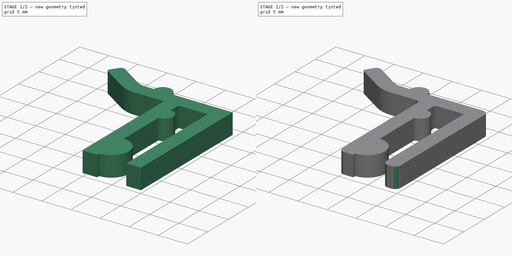
[diagram: build sequence overview — one tinted view per stage of 2, left to right]
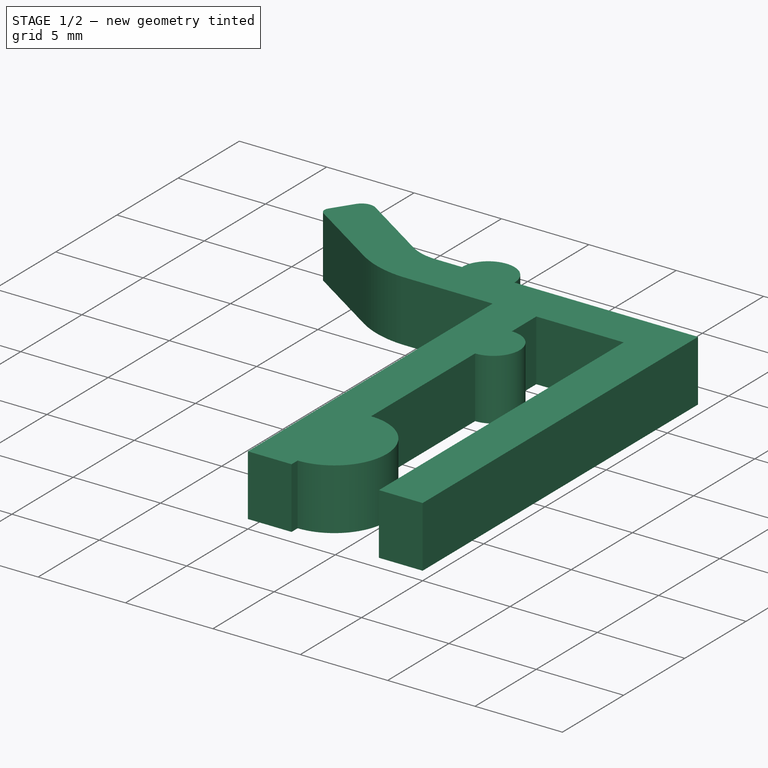
[diagram: stage 1 of 2 — iso view after this stage's code; geometry added in this stage tinted green]
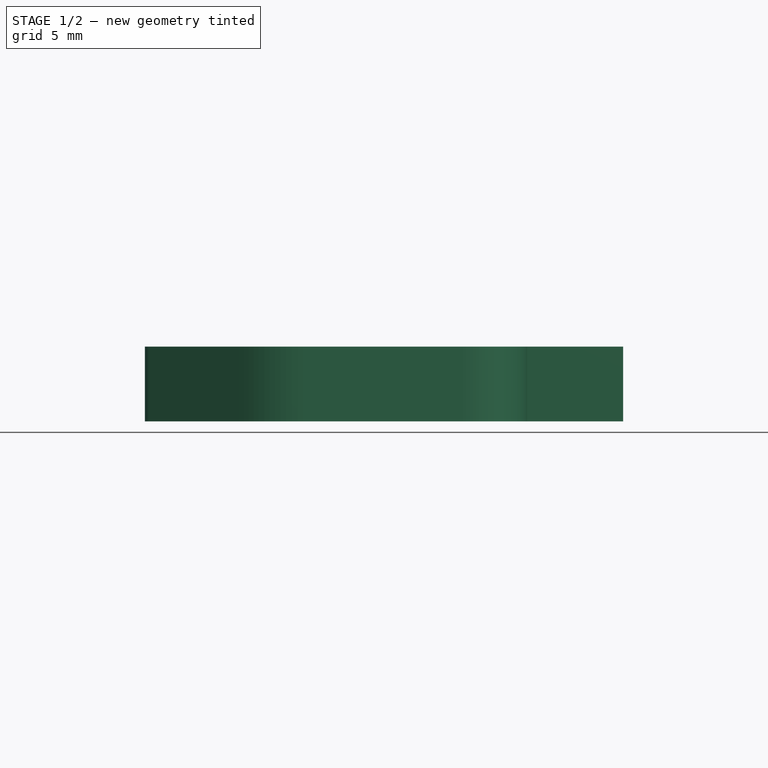
[diagram: stage 1 of 2 — front view after this stage's code; geometry added in this stage tinted green]
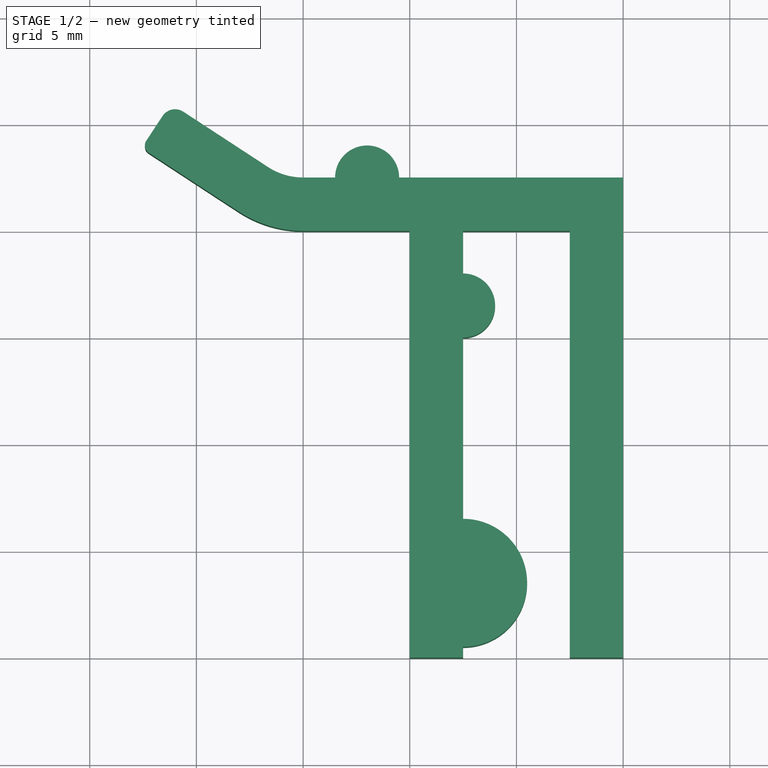
[diagram: stage 1 of 2 — top view after this stage's code; geometry added in this stage tinted green]
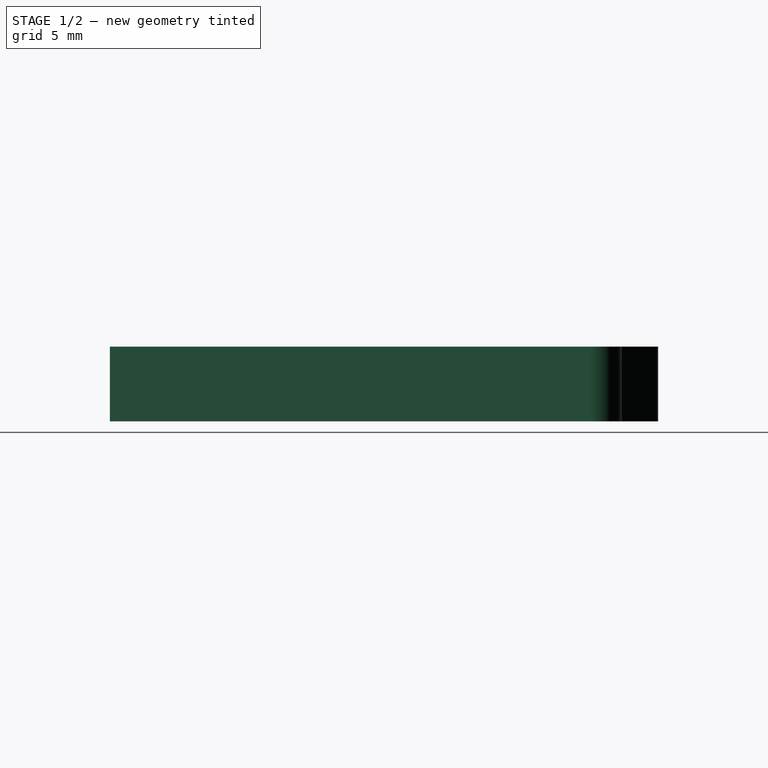
[diagram: stage 1 of 2 — right view after this stage's code; geometry added in this stage tinted green]
FCSTD DOCUMENT  (FreeCAD 0.20R29177 +426 (Git))
Label: dboxGlassOutHanger
License: All rights reserved
LicenseURL: http://en.wikipedia.org/wiki/All_rights_reserved
objects: Sketcher::SketchObject×2, PartDesign::Pad×2, PartDesign::Fillet×2, Spreadsheet::Sheet×1, PartDesign::Body×1
note: 11 computed .brp shape members not serialized (recipe doc carries the construction recipe); baked Part::Feature solids carry a one-line shape summary decoded from their .brp

FEATURE [Sketcher::SketchObject] Sketch
  FullyConstrained = true
  MapMode = 5
  Support = -> [XY_Plane]
  expr: Constraints[17] = Spreadsheet.mesTopInner
  expr: Constraints[18] = Spreadsheet.mesTopOuter
  expr: Constraints[19] = Spreadsheet.mesTotalHeight
  expr: Constraints[24] = Spreadsheet.thickness
  expr: Constraints[26] = Spreadsheet.lidToInner
  expr: Constraints[27] = Spreadsheet.mesToBump
  expr: Constraints[31] = Spreadsheet.mesToBump
  expr: Constraints[32] = Spreadsheet.secondInnerSupportR
  expr: Constraints[34] = Spreadsheet.thickness
  sketch-geometry (12):
    g0: LineSegment StartX=-2.5 StartY=0 StartZ=0 EndX=2.5 EndY=0 EndZ=0
    g1: LineSegment StartX=2.5 StartY=0 StartZ=0 EndX=2.5 EndY=-20 EndZ=0
    g2: LineSegment StartX=-2.5 StartY=-20 StartZ=0 EndX=-2.5 EndY=-19.5 EndZ=0
    g3: LineSegment StartX=-5 StartY=2.5 StartZ=0 EndX=5 EndY=2.5 EndZ=0
    g4: LineSegment StartX=5 StartY=2.5 StartZ=0 EndX=5 EndY=-20 EndZ=0
    g5: LineSegment StartX=-5 StartY=-20 StartZ=0 EndX=-5 EndY=2.5 EndZ=0
    g6: LineSegment StartX=-5 StartY=-20 StartZ=0 EndX=-2.5 EndY=-20 EndZ=0
    g7: LineSegment StartX=2.5 StartY=-20 StartZ=0 EndX=5 EndY=-20 EndZ=0
    g8: ArcOfCircle CenterX=-2.5 CenterY=-3.5 CenterZ=0 NormalX=0 NormalY=0 NormalZ=1 AngleXU=0 Radius=1.5 StartAngle=4.71239 EndAngle=7.85398
    g9: LineSegment StartX=-2.5 StartY=-2 StartZ=0 EndX=-2.5 EndY=0 EndZ=0
    g10: ArcOfCircle CenterX=-2.5 CenterY=-16.5 CenterZ=0 NormalX=0 NormalY=0 NormalZ=1 AngleXU=0 Radius=3 StartAngle=4.71239 EndAngle=7.85398
    g11: LineSegment StartX=-2.5 StartY=-13.5 StartZ=0 EndX=-2.5 EndY=-5 EndZ=0
  constraints (35):
    c: Coincident(g0,g1)
    c: Coincident(g9,g0)
    c: Vertical(g1)
    c: Vertical(g2)
    c: PointOnObject(g0,g-1)
    c: Coincident(g3,g4)
    c: Coincident(g5,g3)
    c: Vertical(g4)
    c: Vertical(g5)
    c: Coincident(g6,g5)
    c: Coincident(g6,g2)
    c: Coincident(g7,g1)
    c: Coincident(g7,g4)
    c: Horizontal(g6)
    c: Horizontal(g7)
    c: Symmetric(g3,g3,g-2)
    c: Symmetric(g0,g0,g-2)
    c: DistanceX(g0,g0) = 5
    c: DistanceX(g3,g3) = 10
    c: DistanceY(g1,g1) = 20
    c: PointOnObject(g8,g2)
    c: Coincident(g11,g8)
    c: Coincident(g9,g8)
    c: Symmetric(g2,g1,g-2)
    c: DistanceY(g-1,g3) = 2.5
    c: Vertical(g9)
    c: Radius(g8) = 1.5
    c: DistanceY(g8,g0) = 3.5
    c: PointOnObject(g10,g2)
    c: Coincident(g2,g10)
    c: Coincident(g11,g10)
    c: DistanceY(g2,g10) = 3.5
    c: Radius(g10) = 3
    c: Vertical(g11)
    c: DistanceX(g3,g8) = 2.5
FEATURE [Spreadsheet::Sheet] Spreadsheet
  cells = A2=mesTopOuter; B2(mesTopOuter)=10; A3=mesTopInner; B3(mesTopInner)=5; A4=mesTotalHeight; B4(mesTotalHeight)=20; A6=thickness; B6(thickness)==(mesTopOuter - mesTopInner) / 2; A7=lidToInner; B7(lidToInner)=1.5; A8=mesToBump; B8(mesToBump)==lidToInner + 2; A9=hinnerLen; B9(hinnerLen)=10; A11=pad; B11(pad)=3.5; A13=secondInnerSupportR; B13(secondInnerSupportR)=3; C13=upper+lower
FEATURE [PartDesign::Pad] Pad
  Direction = (0,0,1)
  Length = 3.5
  Length2 = 10
  Profile = -> Sketch
  ReferenceAxis = -> Sketch [N_Axis]
  Type = 0
  expr: Length = Spreadsheet.pad
FEATURE [Sketcher::SketchObject] Sketch001
  FullyConstrained = true
  MapMode = 5
  Support = -> [XY_Plane]
  expr: Constraints[12] = Spreadsheet.hinnerLen
  expr: Constraints[25] = Spreadsheet.lidToInner
  expr: Constraints[28] = Spreadsheet.thickness
  expr: Constraints[4] = Spreadsheet.thickness
  sketch-geometry (12):
    g0: LineSegment StartX=-10 StartY=0 StartZ=0 EndX=0 EndY=0 EndZ=0
    g1: LineSegment StartX=0 StartY=0 StartZ=0 EndX=0 EndY=2.5 EndZ=0
    g2: LineSegment StartX=0 StartY=2.5 StartZ=0 EndX=-5.5 EndY=2.5 EndZ=0
    g3: LineSegment StartX=-11.6407 StartY=2.98841 StartZ=0 EndX=-15.6172 EndY=5.58604 EndZ=0
    g4: LineSegment StartX=-13.008 StartY=0.895412 StartZ=0 EndX=-17.2275 EndY=3.65181 EndZ=0
    g5: LineSegment StartX=-17.3472 StartY=4.22901 StartZ=0 EndX=-16.5843 EndY=5.38545 EndZ=0
    g6: ArcOfCircle CenterX=-10 CenterY=5.5 CenterZ=0 NormalX=0 NormalY=0 NormalZ=1 AngleXU=0 Radius=5.5 StartAngle=4.13373 EndAngle=4.71239
    g7: ArcOfCircle CenterX=-10 CenterY=5.5 CenterZ=0 NormalX=0 NormalY=0 NormalZ=1 AngleXU=0 Radius=3 StartAngle=4.13373 EndAngle=4.7124
    g8: ArcOfCircle CenterX=-16 CenterY=5 CenterZ=0 NormalX=0 NormalY=0 NormalZ=1 AngleXU=0 Radius=0.7 StartAngle=0.992139 EndAngle=2.55846
    g9: ArcOfCircle CenterX=-17 CenterY=4 CenterZ=0 NormalX=0 NormalY=0 NormalZ=1 AngleXU=0 Radius=0.415902 StartAngle=2.55846 EndAngle=4.13373
    g10: ArcOfCircle CenterX=-7 CenterY=2.5 CenterZ=0 NormalX=0 NormalY=0 NormalZ=1 AngleXU=0 Radius=1.5 StartAngle=1e-16 EndAngle=3.14159
    g11: LineSegment StartX=-8.5 StartY=2.5 StartZ=0 EndX=-9.99998 EndY=2.5 EndZ=0
  constraints (32):
    c: Coincident(g0,g1)
    c: Coincident(g1,g2)
    c: Horizontal(g2)
    c: Vertical(g1)
    c: DistanceY(g1,g1) = 2.5
    c: Coincident(g0,g-1)
    c: Parallel(g4,g3)
    c: Tangent(g4,g6) = 1.5708
    c: Tangent(g0,g6) = -1.5708
    c: Coincident(g11,g7) = 1.5708
    c: Tangent(g3,g7) = 1.5708
    c: Horizontal(g0)
    c: DistanceX(g0,g0) = 10
    c: Tangent(g3,g8) = -1.5708
    c: Tangent(g5,g8) = 1.5708
    c: Tangent(g4,g9) = 1.5708
    c: Tangent(g5,g9) = 1.5708
    c: DistanceX(g8,g0) = 16
    c: DistanceX(g9,g0) = 17
    c: DistanceY(g0,g8) = 5
    c: DistanceY(g0,g9) = 4
    c: Radius(g8) = 0.7
    c: PointOnObject(g10,g2)
    c: Coincident(g2,g10)
    c: Coincident(g11,g10)
    c: Radius(g10) = 1.5
    c: DistanceX(g10,g1) = 7
    c: Horizontal(g11)
    c: DistanceY(g0,g10) = 2.5
    c: Coincident(g7,g6)
    c: Radius(g6) = 5.5
    c: Radius(g7) = 3
FEATURE [PartDesign::Pad] Pad001
  BaseFeature = -> Pad
  Direction = (0,0,1)
  Length = 3.5
  Length2 = 10
  Profile = -> Sketch001
  ReferenceAxis = -> Sketch001 [N_Axis]
  Type = 0
  expr: Length = Spreadsheet.pad
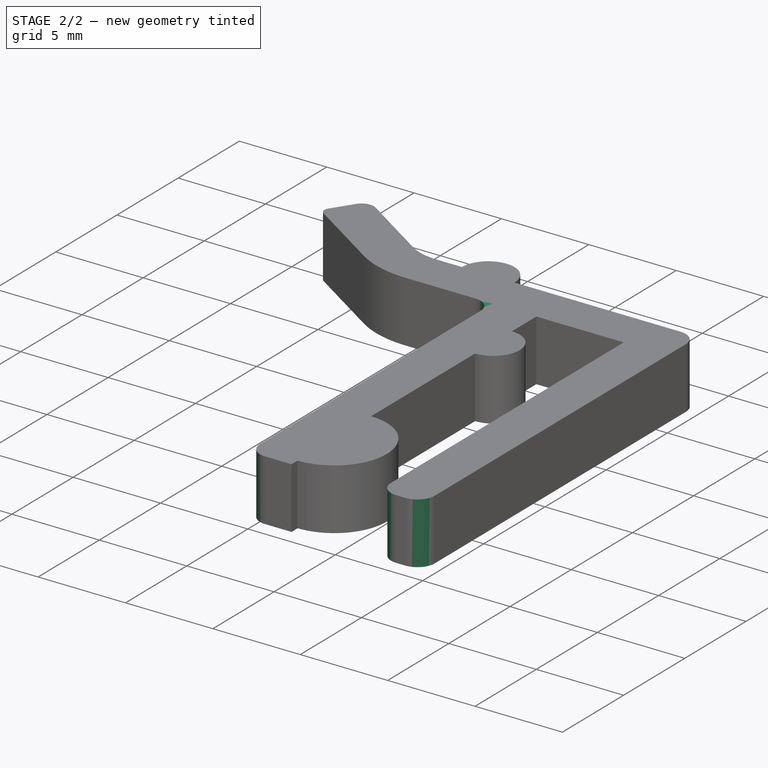
[diagram: stage 2 of 2 — iso view after this stage's code; geometry added in this stage tinted green]
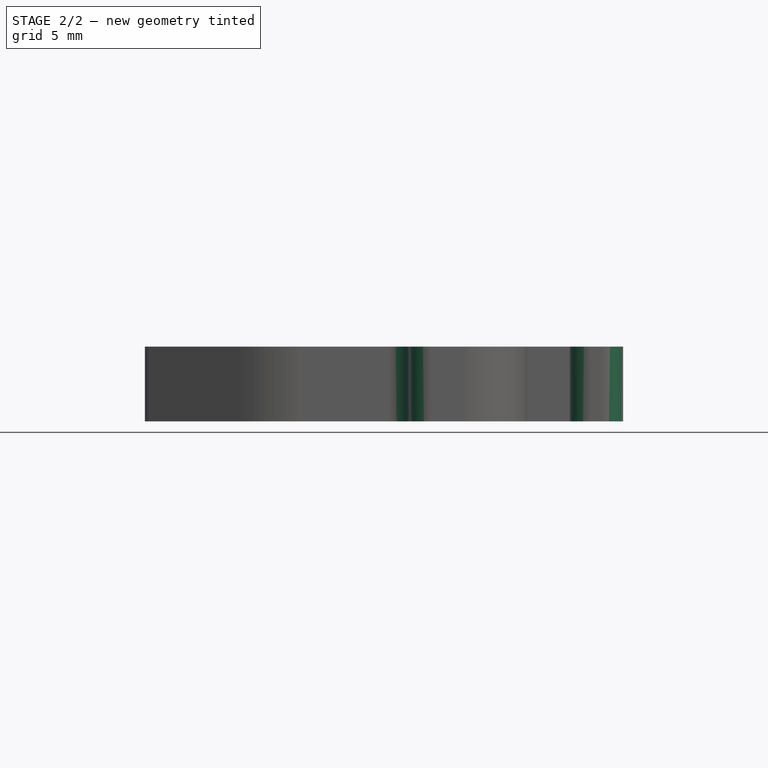
[diagram: stage 2 of 2 — front view after this stage's code; geometry added in this stage tinted green]
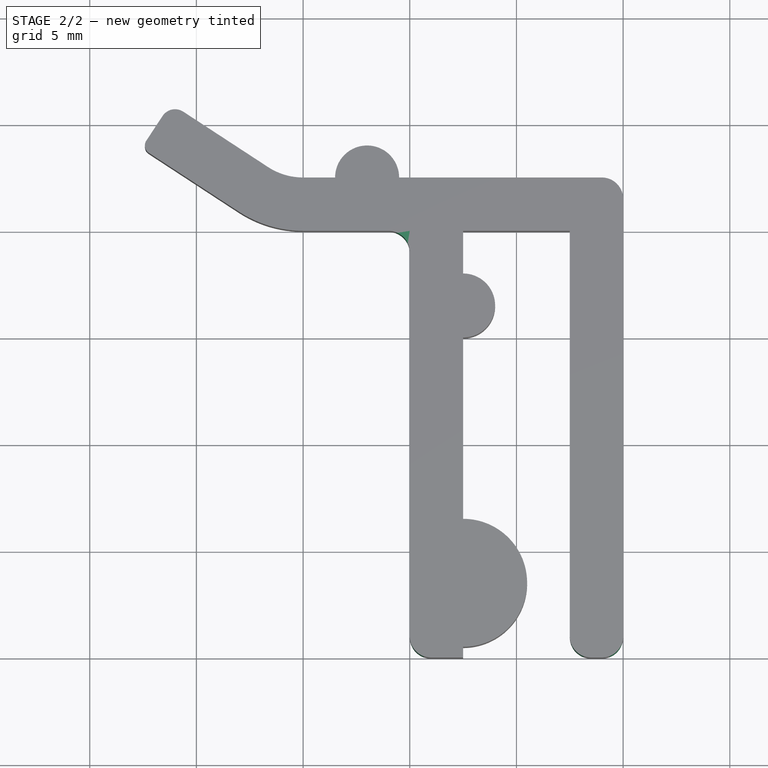
[diagram: stage 2 of 2 — top view after this stage's code; geometry added in this stage tinted green]
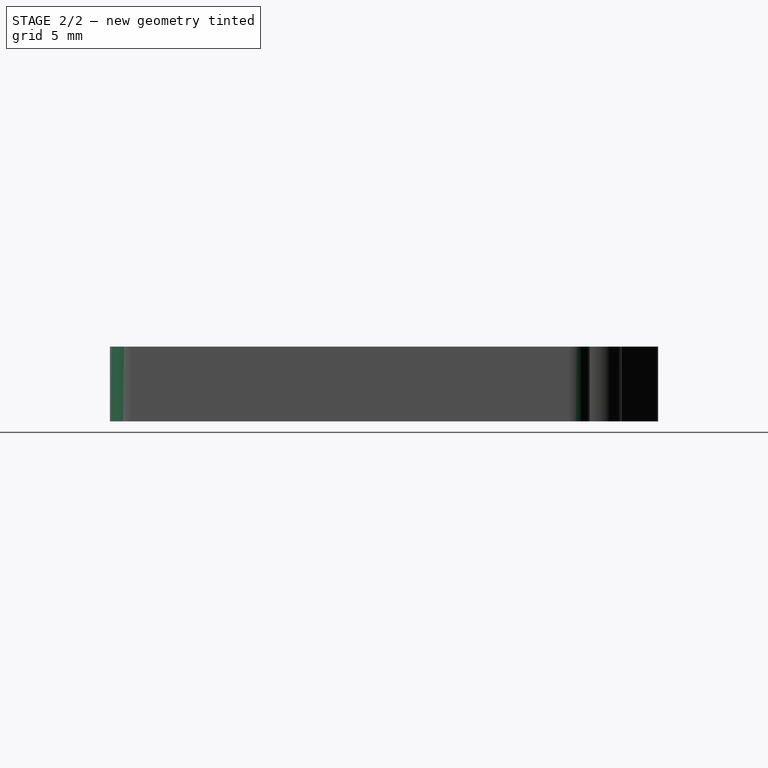
[diagram: stage 2 of 2 — right view after this stage's code; geometry added in this stage tinted green]
FEATURE [PartDesign::Fillet] Fillet
  Base = -> Pad001 [Edge6]
  BaseFeature = -> Pad001
  Radius = 1
  SupportTransform = false
  UseAllEdges = false
FEATURE [PartDesign::Fillet] Fillet001
  Base = -> Fillet [Edge83,Edge84,Edge85,Edge3]
  BaseFeature = -> Fillet
  Radius = 1
  SupportTransform = false
  UseAllEdges = false
FEATURE [PartDesign::Body] Body
  Group = -> [Sketch,Pad,Sketch001,Pad001,Fillet,Fillet001]
  Origin = -> Origin
  Tip = -> Fillet001
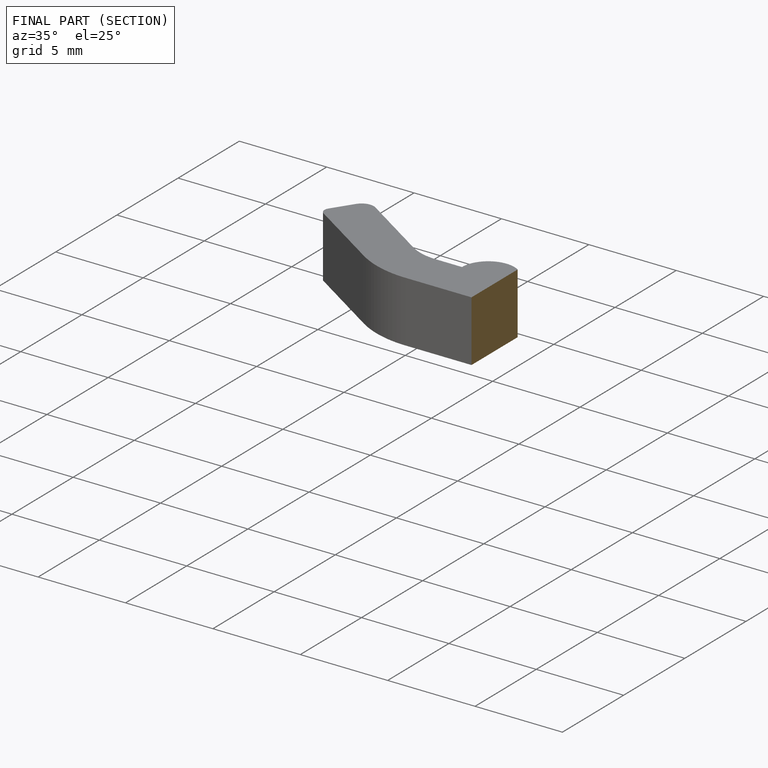
[diagram: finished part — half-section view (interior)]
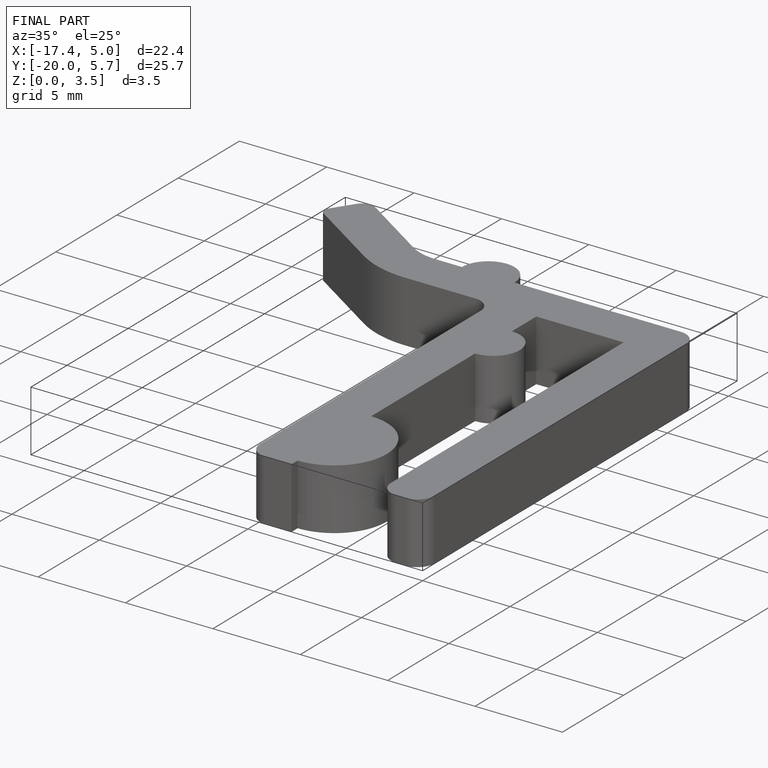
[diagram: finished part — iso view with bounding-box wireframe]
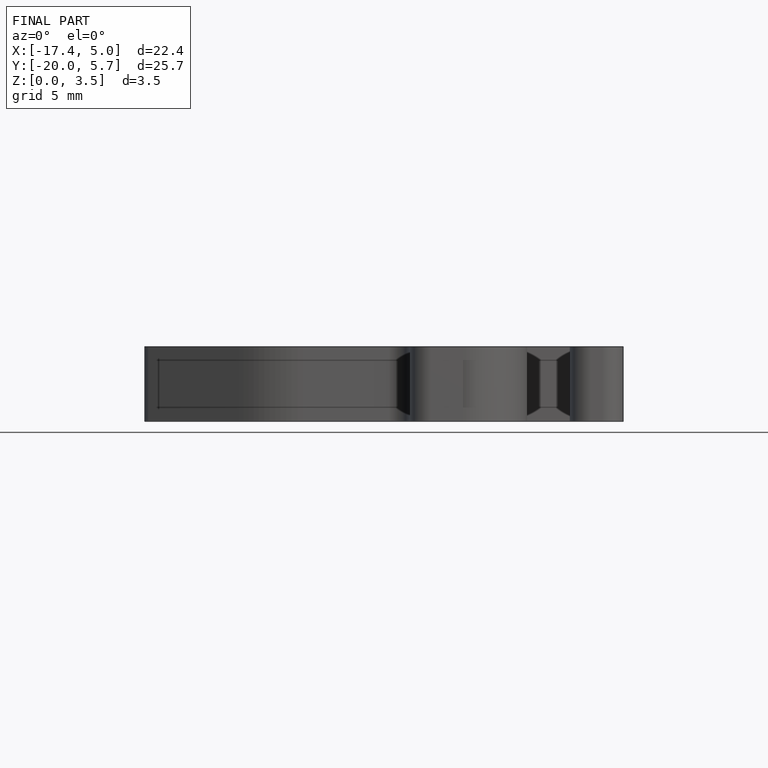
[diagram: finished part — front view with bounding-box wireframe]
